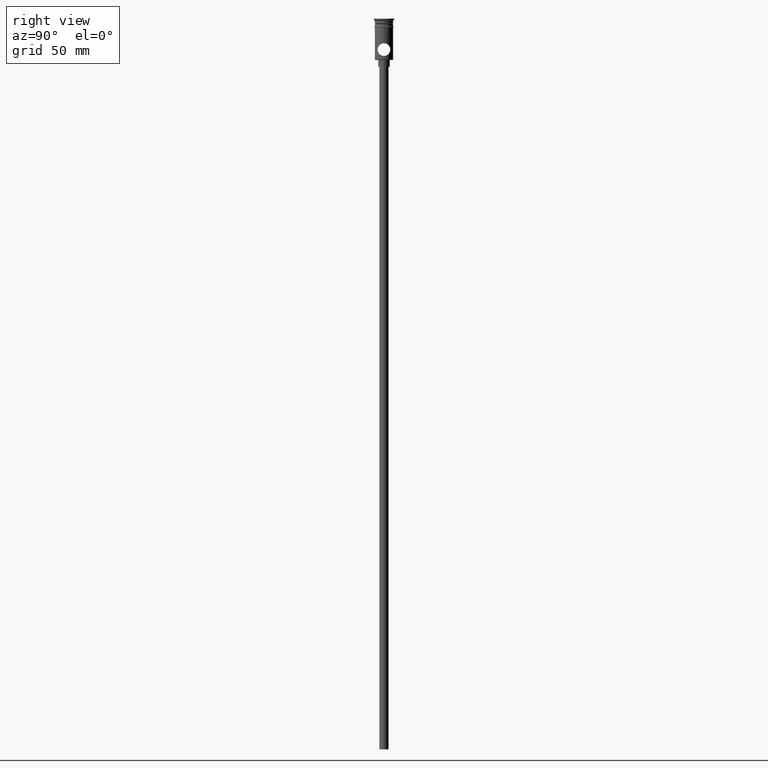
[diagram: clean part render]
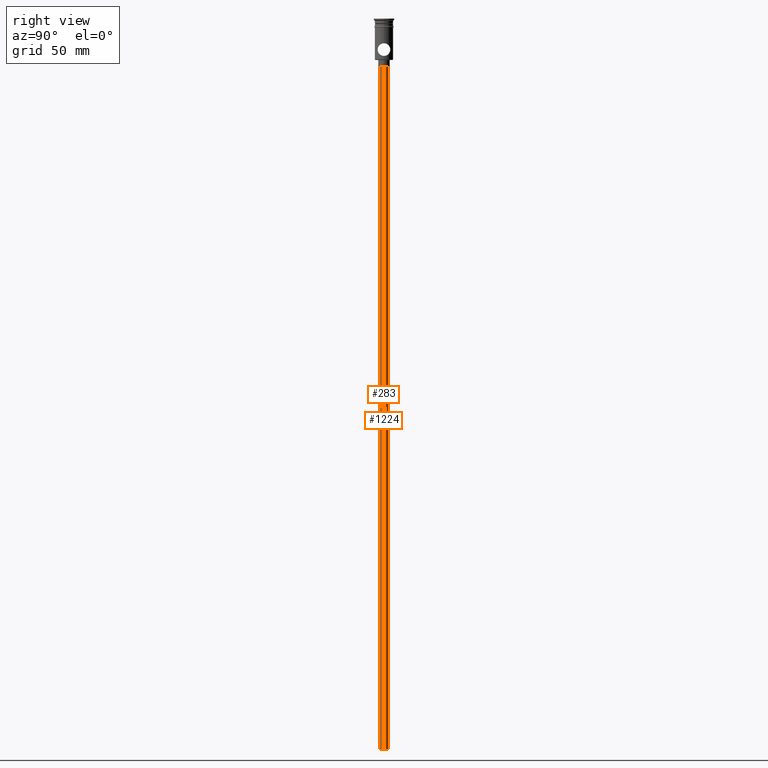
[diagram: same view with one multi-face feature highlighted, each face labeled with its STEP entity id]
A machine part, right view. The highlighted faces form ONE feature: a constant-radius fillet chain: 2 tangent blend faces with common blend radius 2 mm. The faces share edges in the B-rep.
Their STEP definitions:
[1] entity #1224 (Cylinder):
#80 = LINE ( 'NONE', #1385, #330 ) ;
#94 = DIRECTION ( 'NONE',  ( -0.000000000000000000, -0.000000000000000000, 1.000000000000000000 ) ) ;
#213 = CARTESIAN_POINT ( 'NONE',  ( 0.000000000000000000, 0.000000000000000000, -20.99999999999999645 ) ) ;
#250 = DIRECTION ( 'NONE',  ( -0.000000000000000000, -0.000000000000000000, 1.000000000000000000 ) ) ;
#261 = EDGE_LOOP ( 'NONE', ( #814, #1140, #1003, #1230 ) ) ;
#309 = VERTEX_POINT ( 'NONE', #931 ) ;
#319 = EDGE_CURVE ( 'NONE', #864, #309, #80, .T. ) ;
#330 = VECTOR ( 'NONE', #969, 1000.000000000000000 ) ;
#339 = DIRECTION ( 'NONE',  ( -1.000000000000000000, 0.000000000000000000, 0.000000000000000000 ) ) ;
#348 = CARTESIAN_POINT ( 'NONE',  ( 0.000000000000000000, 0.000000000000000000, -318.0000000000000000 ) ) ;
#372 = VECTOR ( 'NONE', #94, 1000.000000000000000 ) ;
#425 = EDGE_CURVE ( 'NONE', #309, #960, #1434, .T. ) ;
#513 = CARTESIAN_POINT ( 'NONE',  ( 2.000000000000000000, 0.000000000000000000, -318.0000000000000000 ) ) ;
#529 = AXIS2_PLACEMENT_3D ( 'NONE', #213, #856, #1304 ) ;
#581 = AXIS2_PLACEMENT_3D ( 'NONE', #890, #1207, #339 ) ;
#625 = CIRCLE ( 'NONE', #581, 2.000000000000000000 ) ;
#647 = CARTESIAN_POINT ( 'NONE',  ( 2.000000000000000000, 0.000000000000000000, -20.99999999999999645 ) ) ;
#673 = EDGE_CURVE ( 'NONE', #864, #1147, #625, .T. ) ;
#687 = FACE_OUTER_BOUND ( 'NONE', #261, .T. ) ;
#742 = CARTESIAN_POINT ( 'NONE',  ( 2.000000000000000000, 0.000000000000000000, -318.0000000000000000 ) ) ;
#814 = ORIENTED_EDGE ( 'NONE', *, *, #673, .F. ) ;
#856 = DIRECTION ( 'NONE',  ( 0.000000000000000000, 0.000000000000000000, -1.000000000000000000 ) ) ;
#864 = VERTEX_POINT ( 'NONE', #1417 ) ;
#890 = CARTESIAN_POINT ( 'NONE',  ( 0.000000000000000000, 0.000000000000000000, -318.0000000000000000 ) ) ;
#913 = DIRECTION ( 'NONE',  ( 1.000000000000000000, 0.000000000000000000, 0.000000000000000000 ) ) ;
#931 = CARTESIAN_POINT ( 'NONE',  ( -2.000000000000000000, 2.449293598294706414E-16, -20.99999999999999645 ) ) ;
#960 = VERTEX_POINT ( 'NONE', #647 ) ;
#969 = DIRECTION ( 'NONE',  ( -0.000000000000000000, -0.000000000000000000, 1.000000000000000000 ) ) ;
#1003 = ORIENTED_EDGE ( 'NONE', *, *, #425, .T. ) ;
#1140 = ORIENTED_EDGE ( 'NONE', *, *, #319, .T. ) ;
#1147 = VERTEX_POINT ( 'NONE', #742 ) ;
#1195 = LINE ( 'NONE', #513, #372 ) ;
#1207 = DIRECTION ( 'NONE',  ( 0.000000000000000000, 0.000000000000000000, -1.000000000000000000 ) ) ;
#1209 = AXIS2_PLACEMENT_3D ( 'NONE', #348, #250, #913 ) ;
#1224 = ADVANCED_FACE ( 'NONE', ( #687 ), #1337, .T. ) ;
#1230 = ORIENTED_EDGE ( 'NONE', *, *, #1377, .F. ) ;
#1304 = DIRECTION ( 'NONE',  ( -1.000000000000000000, 0.000000000000000000, 0.000000000000000000 ) ) ;
#1337 = CYLINDRICAL_SURFACE ( 'NONE', #1209, 2.000000000000000000 ) ;
#1377 = EDGE_CURVE ( 'NONE', #1147, #960, #1195, .T. ) ;
#1385 = CARTESIAN_POINT ( 'NONE',  ( -2.000000000000000000, 2.449293598294706414E-16, -318.0000000000000000 ) ) ;
#1417 = CARTESIAN_POINT ( 'NONE',  ( -2.000000000000000000, 2.449293598294706414E-16, -318.0000000000000000 ) ) ;
#1434 = CIRCLE ( 'NONE', #529, 2.000000000000000000 ) ;
[2] entity #283 (Cylinder):
#80 = LINE ( 'NONE', #1385, #330 ) ;
#94 = DIRECTION ( 'NONE',  ( -0.000000000000000000, -0.000000000000000000, 1.000000000000000000 ) ) ;
#158 = EDGE_CURVE ( 'NONE', #960, #309, #1059, .T. ) ;
#263 = CARTESIAN_POINT ( 'NONE',  ( 0.000000000000000000, 0.000000000000000000, -318.0000000000000000 ) ) ;
#283 = ADVANCED_FACE ( 'NONE', ( #699 ), #366, .T. ) ;
#299 = CARTESIAN_POINT ( 'NONE',  ( 0.000000000000000000, 0.000000000000000000, -318.0000000000000000 ) ) ;
#307 = DIRECTION ( 'NONE',  ( -1.000000000000000000, 0.000000000000000000, 0.000000000000000000 ) ) ;
#309 = VERTEX_POINT ( 'NONE', #931 ) ;
#319 = EDGE_CURVE ( 'NONE', #864, #309, #80, .T. ) ;
#330 = VECTOR ( 'NONE', #969, 1000.000000000000000 ) ;
#359 = ORIENTED_EDGE ( 'NONE', *, *, #319, .F. ) ;
#366 = CYLINDRICAL_SURFACE ( 'NONE', #925, 2.000000000000000000 ) ;
#372 = VECTOR ( 'NONE', #94, 1000.000000000000000 ) ;
#427 = DIRECTION ( 'NONE',  ( 0.000000000000000000, 0.000000000000000000, -1.000000000000000000 ) ) ;
#485 = AXIS2_PLACEMENT_3D ( 'NONE', #881, #1326, #1220 ) ;
#494 = ORIENTED_EDGE ( 'NONE', *, *, #1360, .F. ) ;
#513 = CARTESIAN_POINT ( 'NONE',  ( 2.000000000000000000, 0.000000000000000000, -318.0000000000000000 ) ) ;
#622 = ORIENTED_EDGE ( 'NONE', *, *, #1377, .T. ) ;
#647 = CARTESIAN_POINT ( 'NONE',  ( 2.000000000000000000, 0.000000000000000000, -20.99999999999999645 ) ) ;
#691 = CIRCLE ( 'NONE', #877, 2.000000000000000000 ) ;
#699 = FACE_OUTER_BOUND ( 'NONE', #1355, .T. ) ;
#742 = CARTESIAN_POINT ( 'NONE',  ( 2.000000000000000000, 0.000000000000000000, -318.0000000000000000 ) ) ;
#864 = VERTEX_POINT ( 'NONE', #1417 ) ;
#877 = AXIS2_PLACEMENT_3D ( 'NONE', #299, #427, #307 ) ;
#881 = CARTESIAN_POINT ( 'NONE',  ( 0.000000000000000000, 0.000000000000000000, -20.99999999999999645 ) ) ;
#914 = DIRECTION ( 'NONE',  ( -0.000000000000000000, -0.000000000000000000, 1.000000000000000000 ) ) ;
#920 = DIRECTION ( 'NONE',  ( 1.000000000000000000, 0.000000000000000000, 0.000000000000000000 ) ) ;
#925 = AXIS2_PLACEMENT_3D ( 'NONE', #263, #914, #920 ) ;
#931 = CARTESIAN_POINT ( 'NONE',  ( -2.000000000000000000, 2.449293598294706414E-16, -20.99999999999999645 ) ) ;
#960 = VERTEX_POINT ( 'NONE', #647 ) ;
#969 = DIRECTION ( 'NONE',  ( -0.000000000000000000, -0.000000000000000000, 1.000000000000000000 ) ) ;
#1059 = CIRCLE ( 'NONE', #485, 2.000000000000000000 ) ;
#1147 = VERTEX_POINT ( 'NONE', #742 ) ;
#1195 = LINE ( 'NONE', #513, #372 ) ;
#1220 = DIRECTION ( 'NONE',  ( -1.000000000000000000, 0.000000000000000000, 0.000000000000000000 ) ) ;
#1259 = ORIENTED_EDGE ( 'NONE', *, *, #158, .T. ) ;
#1326 = DIRECTION ( 'NONE',  ( 0.000000000000000000, 0.000000000000000000, -1.000000000000000000 ) ) ;
#1355 = EDGE_LOOP ( 'NONE', ( #359, #494, #622, #1259 ) ) ;
#1360 = EDGE_CURVE ( 'NONE', #1147, #864, #691, .T. ) ;
#1377 = EDGE_CURVE ( 'NONE', #1147, #960, #1195, .T. ) ;
#1385 = CARTESIAN_POINT ( 'NONE',  ( -2.000000000000000000, 2.449293598294706414E-16, -318.0000000000000000 ) ) ;
#1417 = CARTESIAN_POINT ( 'NONE',  ( -2.000000000000000000, 2.449293598294706414E-16, -318.0000000000000000 ) ) ;